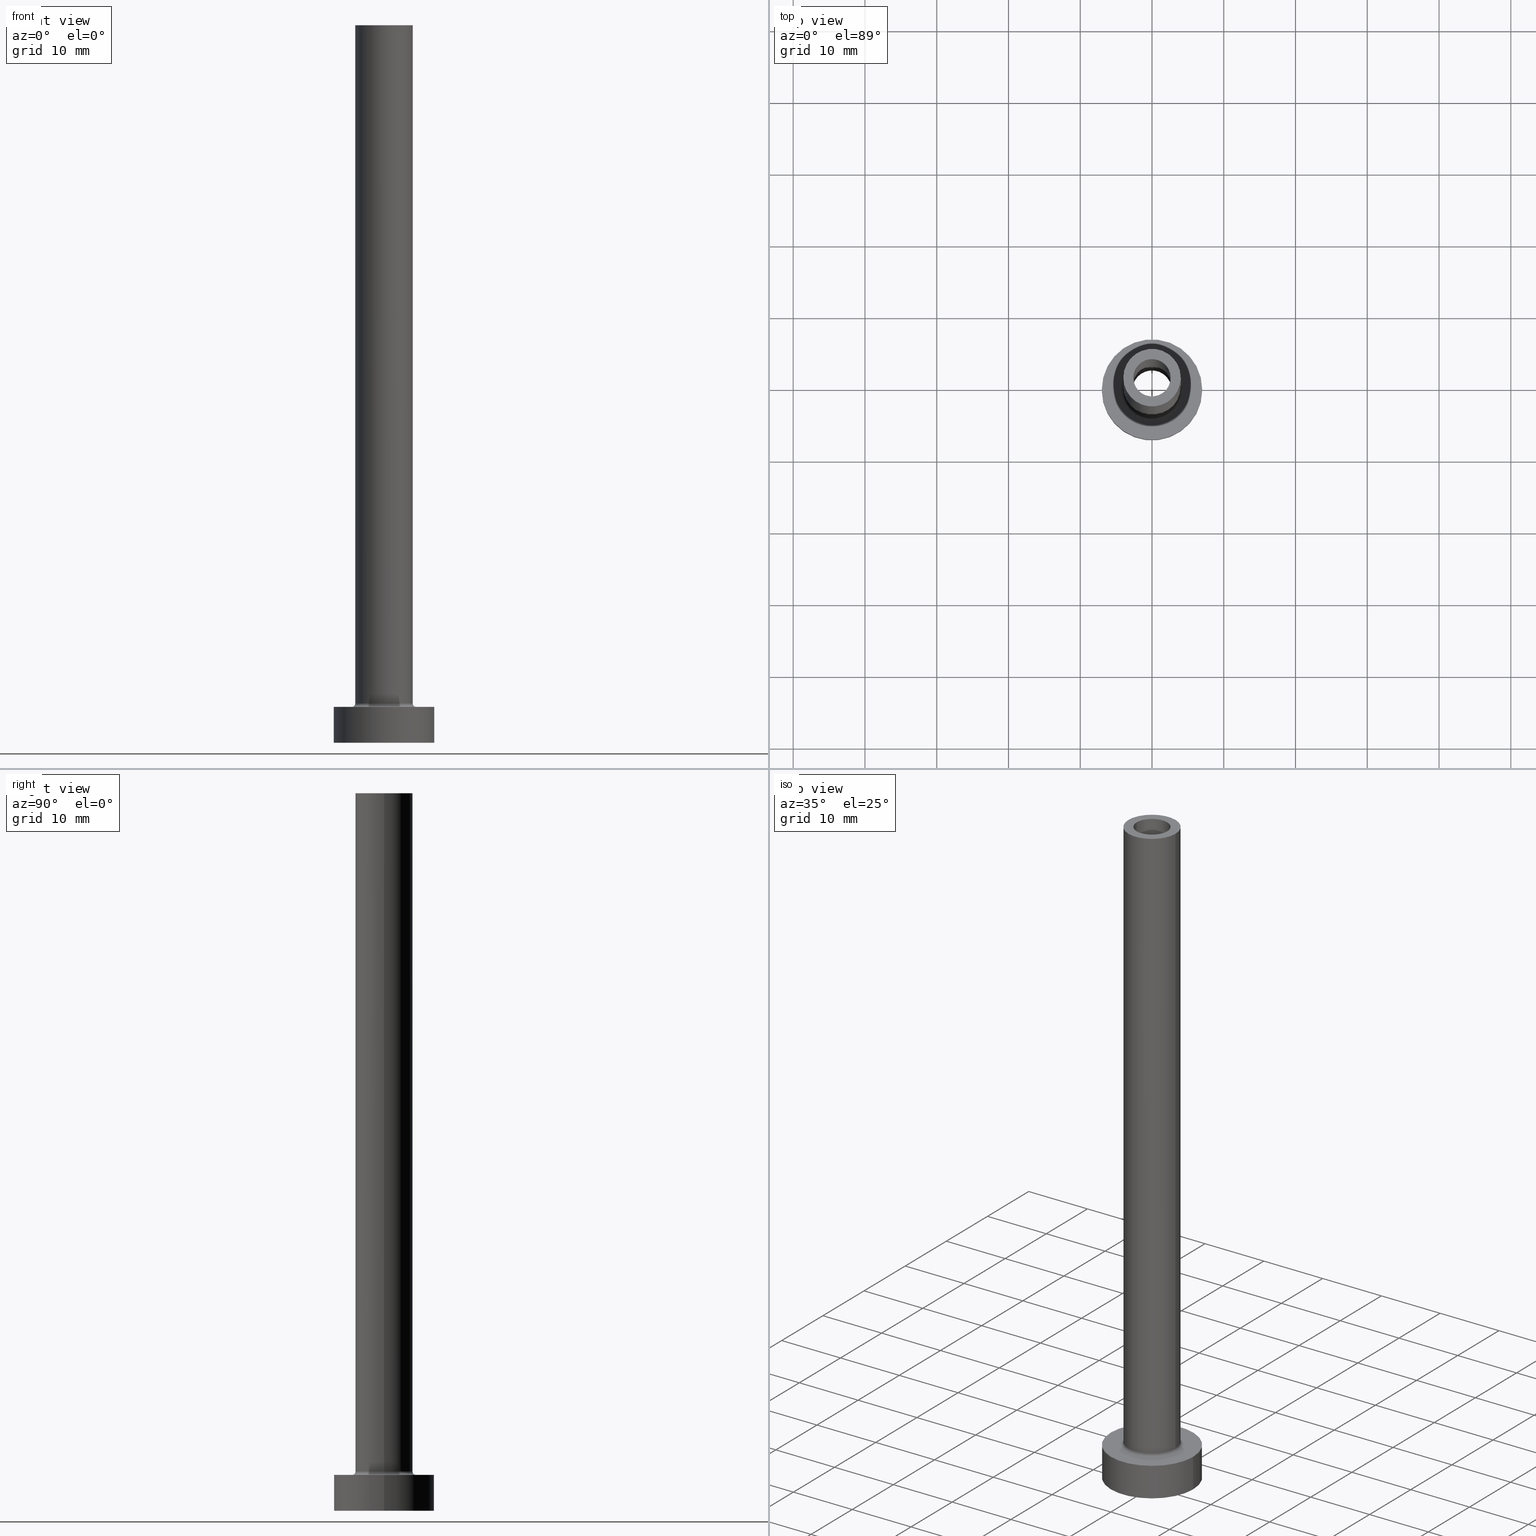
[diagram: canonical four-view strip — front | top / right | iso, engineering-drawing reading convention]
A machine part, canonical four-view strip (front | top / right | iso — engineering-drawing reading convention). The complete STEP part file that produces these views, byte-faithful:
ISO-10303-21;
HEADER;
FILE_DESCRIPTION (( 'STEP AP203' ),
    '1' );
FILE_NAME ('12f9.STEP',
    '2023-02-13T10:12:18',
    ( '' ),
    ( '' ),
    'SwSTEP 2.0',
    'SolidWorks 2019',
    '' );
FILE_SCHEMA (( 'CONFIG_CONTROL_DESIGN' ));
ENDSEC;

DATA;
#1 = EDGE_LOOP ( 'NONE', ( #250, #408, #49, #73 ) ) ;
#2 = EDGE_CURVE ( 'NONE', #51, #146, #188, .T. ) ;
#3 = DIRECTION ( 'NONE',  ( 1.000000000000000000, 0.000000000000000000, 0.000000000000000000 ) ) ;
#4 = EDGE_LOOP ( 'NONE', ( #149, #312 ) ) ;
#5 = CARTESIAN_POINT ( 'NONE',  ( 0.000000000000000000, 0.000000000000000000, 62.77817459305202874 ) ) ;
#6 = ORIENTED_EDGE ( 'NONE', *, *, #400, .T. ) ;
#7 = CC_DESIGN_APPROVAL ( #227, ( #369 ) ) ;
#8 =( LENGTH_UNIT ( ) NAMED_UNIT ( * ) SI_UNIT ( .MILLI., .METRE. ) );
#9 = CARTESIAN_POINT ( 'NONE',  ( 4.500000000000000888, 0.000000000000000000, 5.500000000000005329 ) ) ;
#10 = DIRECTION ( 'NONE',  ( 0.000000000000000000, 0.000000000000000000, 1.000000000000000000 ) ) ;
#11 = VERTEX_POINT ( 'NONE', #153 ) ;
#12 = EDGE_CURVE ( 'NONE', #229, #426, #82, .T. ) ;
#13 = CYLINDRICAL_SURFACE ( 'NONE', #444, 2.600000000000000089 ) ;
#14 = EDGE_LOOP ( 'NONE', ( #297, #267, #355, #300 ) ) ;
#15 = CIRCLE ( 'NONE', #430, 0.5000000000000004441 ) ;
#16 = CIRCLE ( 'NONE', #273, 2.750000000000000000 ) ;
#17 = PERSON_AND_ORGANIZATION ( #208, #366 ) ;
#18 = FACE_OUTER_BOUND ( 'NONE', #287, .T. ) ;
#19 = EDGE_CURVE ( 'NONE', #401, #229, #222, .T. ) ;
#20 = PERSON_AND_ORGANIZATION_ROLE ( 'classification_officer' ) ;
#21 = CARTESIAN_POINT ( 'NONE',  ( 0.000000000000000000, 0.000000000000000000, 5.500000000000005329 ) ) ;
#22 = DIRECTION ( 'NONE',  ( 1.000000000000000000, 0.000000000000000000, 0.000000000000000000 ) ) ;
#23 = CC_DESIGN_APPROVAL ( #385, ( #166 ) ) ;
#24 = CIRCLE ( 'NONE', #217, 4.500000000000000888 ) ;
#25 = CYLINDRICAL_SURFACE ( 'NONE', #225, 4.000000000000000000 ) ;
#26 = DIRECTION ( 'NONE',  ( 0.000000000000000000, 0.000000000000000000, -1.000000000000000000 ) ) ;
#27 = CARTESIAN_POINT ( 'NONE',  ( 0.000000000000000000, 0.000000000000000000, 100.0000000000000000 ) ) ;
#28 = AXIS2_PLACEMENT_3D ( 'NONE', #315, #457, #102 ) ;
#29 = CARTESIAN_POINT ( 'NONE',  ( 0.000000000000000000, 0.000000000000000000, 55.00000000000000711 ) ) ;
#30 = DIRECTION ( 'NONE',  ( 0.000000000000000000, 0.000000000000000000, 1.000000000000000000 ) ) ;
#31 = DIRECTION ( 'NONE',  ( 0.000000000000000000, 0.000000000000000000, 1.000000000000000000 ) ) ;
#32 = ORIENTED_EDGE ( 'NONE', *, *, #177, .F. ) ;
#33 = AXIS2_PLACEMENT_3D ( 'NONE', #27, #165, #377 ) ;
#34 = CARTESIAN_POINT ( 'NONE',  ( 0.000000000000000000, 0.000000000000000000, 55.00000000000000711 ) ) ;
#35 = ORIENTED_EDGE ( 'NONE', *, *, #400, .F. ) ;
#36 = ADVANCED_FACE ( 'NONE', ( #18 ), #432, .T. ) ;
#37 = VECTOR ( 'NONE', #411, 1000.000000000000000 ) ;
#38 = FACE_BOUND ( 'NONE', #316, .T. ) ;
#39 = ORIENTED_EDGE ( 'NONE', *, *, #164, .F. ) ;
#40 = DIRECTION ( 'NONE',  ( 1.000000000000000000, 0.000000000000000000, 0.000000000000000000 ) ) ;
#41 = ORIENTED_EDGE ( 'NONE', *, *, #442, .T. ) ;
#42 = FACE_OUTER_BOUND ( 'NONE', #331, .T. ) ;
#43 = CARTESIAN_POINT ( 'NONE',  ( 0.000000000000000000, 0.000000000000000000, 5.000000000000000000 ) ) ;
#44 = AXIS2_PLACEMENT_3D ( 'NONE', #329, #10, #40 ) ;
#45 = ADVANCED_FACE ( 'NONE', ( #365 ), #402, .T. ) ;
#46 = PERSON_AND_ORGANIZATION ( #208, #366 ) ;
#47 = ORIENTED_EDGE ( 'NONE', *, *, #142, .F. ) ;
#48 = COORDINATED_UNIVERSAL_TIME_OFFSET ( 1, 0, .AHEAD. ) ;
#49 = ORIENTED_EDGE ( 'NONE', *, *, #235, .F. ) ;
#50 = DIRECTION ( 'NONE',  ( -0.000000000000000000, -0.000000000000000000, -1.000000000000000000 ) ) ;
#51 = VERTEX_POINT ( 'NONE', #330 ) ;
#52 = CC_DESIGN_PERSON_AND_ORGANIZATION_ASSIGNMENT ( #134, #65, ( #166 ) ) ;
#53 = VECTOR ( 'NONE', #121, 1000.000000000000000 ) ;
#54 = DIRECTION ( 'NONE',  ( -0.000000000000000000, -0.000000000000000000, -1.000000000000000000 ) ) ;
#55 = DIRECTION ( 'NONE',  ( 1.000000000000000000, 0.000000000000000000, 0.000000000000000000 ) ) ;
#56 = LINE ( 'NONE', #197, #119 ) ;
#57 = VECTOR ( 'NONE', #270, 1000.000000000000000 ) ;
#58 = CC_DESIGN_PERSON_AND_ORGANIZATION_ASSIGNMENT ( #306, #162, ( #166 ) ) ;
#59 = DIRECTION ( 'NONE',  ( 0.000000000000000000, 0.000000000000000000, 1.000000000000000000 ) ) ;
#60 = DIRECTION ( 'NONE',  ( -0.000000000000000000, -0.000000000000000000, -1.000000000000000000 ) ) ;
#61 = LINE ( 'NONE', #276, #159 ) ;
#62 = EDGE_CURVE ( 'NONE', #426, #211, #156, .T. ) ;
#63 = FACE_BOUND ( 'NONE', #4, .T. ) ;
#64 = ORIENTED_EDGE ( 'NONE', *, *, #209, .T. ) ;
#65 = PERSON_AND_ORGANIZATION_ROLE ( 'design_supplier' ) ;
#66 = FACE_OUTER_BOUND ( 'NONE', #231, .T. ) ;
#67 = EDGE_LOOP ( 'NONE', ( #178, #434, #157, #47 ) ) ;
#68 = EDGE_CURVE ( 'NONE', #324, #192, #84, .T. ) ;
#69 = CARTESIAN_POINT ( 'NONE',  ( 0.000000000000000000, 0.000000000000000000, 5.000000000000000000 ) ) ;
#70 = VERTEX_POINT ( 'NONE', #126 ) ;
#71 = CLOSED_SHELL ( 'NONE', ( #415, #334, #342, #92, #45, #36, #253, #219, #169, #379, #99, #447, #310, #154 ) ) ;
#72 = DIRECTION ( 'NONE',  ( 1.000000000000000000, 0.000000000000000000, 0.000000000000000000 ) ) ;
#73 = ORIENTED_EDGE ( 'NONE', *, *, #127, .F. ) ;
#74 = AXIS2_PLACEMENT_3D ( 'NONE', #91, #238, #448 ) ;
#75 = ORIENTED_EDGE ( 'NONE', *, *, #357, .F. ) ;
#76 = DIRECTION ( 'NONE',  ( 1.000000000000000000, 0.000000000000000000, 0.000000000000000000 ) ) ;
#77 = CARTESIAN_POINT ( 'NONE',  ( -4.000000000000000000, 0.000000000000000000, 100.0000000000000000 ) ) ;
#78 = EDGE_CURVE ( 'NONE', #104, #11, #345, .T. ) ;
#79 = COORDINATED_UNIVERSAL_TIME_OFFSET ( 1, 0, .AHEAD. ) ;
#80 = ORIENTED_EDGE ( 'NONE', *, *, #424, .T. ) ;
#81 = SECURITY_CLASSIFICATION ( '', '', #453 ) ;
#82 = CIRCLE ( 'NONE', #373, 4.000000000000000000 ) ;
#83 = APPLICATION_PROTOCOL_DEFINITION ( 'international standard', 'config_control_design', 1994, #419 ) ;
#84 = LINE ( 'NONE', #333, #417 ) ;
#85 = PERSON_AND_ORGANIZATION_ROLE ( 'design_owner' ) ;
#86 = EDGE_CURVE ( 'NONE', #456, #401, #376, .T. ) ;
#87 = ORIENTED_EDGE ( 'NONE', *, *, #410, .F. ) ;
#88 = CARTESIAN_POINT ( 'NONE',  ( 2.750000000000000000, 3.367778697655221012E-16, 62.77817459305202874 ) ) ;
#89 = AXIS2_PLACEMENT_3D ( 'NONE', #326, #230, #221 ) ;
#90 = DIRECTION ( 'NONE',  ( 1.000000000000000000, 0.000000000000000000, 0.000000000000000000 ) ) ;
#91 = CARTESIAN_POINT ( 'NONE',  ( 0.000000000000000000, 0.000000000000000000, 100.0000000000000000 ) ) ;
#92 = ADVANCED_FACE ( 'NONE', ( #340 ), #124, .T. ) ;
#93 = CARTESIAN_POINT ( 'NONE',  ( 0.000000000000000000, 0.000000000000000000, 100.0000000000000000 ) ) ;
#94 = CIRCLE ( 'NONE', #319, 4.000000000000000000 ) ;
#95 = CIRCLE ( 'NONE', #89, 4.000000000000000000 ) ;
#96 = AXIS2_PLACEMENT_3D ( 'NONE', #436, #161, #112 ) ;
#97 = DIRECTION ( 'NONE',  ( 0.000000000000000000, 0.000000000000000000, 1.000000000000000000 ) ) ;
#98 = CARTESIAN_POINT ( 'NONE',  ( 0.000000000000000000, 0.000000000000000000, 0.000000000000000000 ) ) ;
#99 = ADVANCED_FACE ( 'NONE', ( #268 ), #404, .F. ) ;
#100 = FACE_OUTER_BOUND ( 'NONE', #278, .T. ) ;
#101 = ORIENTED_EDGE ( 'NONE', *, *, #318, .T. ) ;
#102 = DIRECTION ( 'NONE',  ( 1.000000000000000000, 0.000000000000000000, 0.000000000000000000 ) ) ;
#103 = DIRECTION ( 'NONE',  ( 1.000000000000000000, 0.000000000000000000, -0.000000000000000000 ) ) ;
#104 = VERTEX_POINT ( 'NONE', #237 ) ;
#105 = CARTESIAN_POINT ( 'NONE',  ( 0.000000000000000000, 0.000000000000000000, 62.77817459305202874 ) ) ;
#106 = EDGE_LOOP ( 'NONE', ( #136, #441, #117, #352 ) ) ;
#107 = CARTESIAN_POINT ( 'NONE',  ( -7.000000000000000000, 0.000000000000000000, 5.000000000000000000 ) ) ;
#108 = CIRCLE ( 'NONE', #44, 7.000000000000000000 ) ;
#109 = ORIENTED_EDGE ( 'NONE', *, *, #285, .F. ) ;
#110 = AXIS2_PLACEMENT_3D ( 'NONE', #361, #143, #137 ) ;
#111 = DIRECTION ( 'NONE',  ( 1.000000000000000000, 0.000000000000000000, 0.000000000000000000 ) ) ;
#112 = DIRECTION ( 'NONE',  ( -1.000000000000000000, 0.000000000000000000, 0.000000000000000000 ) ) ;
#113 = EDGE_CURVE ( 'NONE', #211, #284, #24, .T. ) ;
#114 = PERSON_AND_ORGANIZATION ( #208, #366 ) ;
#115 = DIRECTION ( 'NONE',  ( 0.000000000000000000, -1.000000000000000000, 0.000000000000000000 ) ) ;
#116 = PERSON_AND_ORGANIZATION ( #208, #366 ) ;
#117 = ORIENTED_EDGE ( 'NONE', *, *, #19, .T. ) ;
#118 = AXIS2_PLACEMENT_3D ( 'NONE', #216, #429, #257 ) ;
#119 = VECTOR ( 'NONE', #60, 1000.000000000000000 ) ;
#120 = FACE_OUTER_BOUND ( 'NONE', #1, .T. ) ;
#121 = DIRECTION ( 'NONE',  ( 0.000000000000000000, 0.000000000000000000, -1.000000000000000000 ) ) ;
#122 = APPROVAL_ROLE ( '' ) ;
#123 = ORIENTED_EDGE ( 'NONE', *, *, #148, .T. ) ;
#124 = CYLINDRICAL_SURFACE ( 'NONE', #33, 4.000000000000000000 ) ;
#125 = LOCAL_TIME ( 11, 12, 18.00000000000000000, #48 ) ;
#126 = CARTESIAN_POINT ( 'NONE',  ( -2.600000000000000089, 0.000000000000000000, 55.00000000000000711 ) ) ;
#127 = EDGE_CURVE ( 'NONE', #151, #70, #195, .T. ) ;
#128 = CARTESIAN_POINT ( 'NONE',  ( 7.000000000000000000, 8.572527594031473190E-16, 5.000000000000000000 ) ) ;
#129 = PERSON_AND_ORGANIZATION ( #208, #366 ) ;
#130 = DIRECTION ( 'NONE',  ( 0.000000000000000000, 0.000000000000000000, 1.000000000000000000 ) ) ;
#131 = SHAPE_DEFINITION_REPRESENTATION ( #183, #236 ) ;
#132 = CIRCLE ( 'NONE', #282, 2.600000000000000089 ) ;
#133 = LINE ( 'NONE', #128, #57 ) ;
#134 = PERSON_AND_ORGANIZATION ( #208, #366 ) ;
#135 = DIRECTION ( 'NONE',  ( 0.000000000000000000, 0.000000000000000000, 1.000000000000000000 ) ) ;
#136 = ORIENTED_EDGE ( 'NONE', *, *, #318, .F. ) ;
#137 = DIRECTION ( 'NONE',  ( 1.000000000000000000, 0.000000000000000000, 0.000000000000000000 ) ) ;
#138 = EDGE_LOOP ( 'NONE', ( #255, #101, #64, #207 ) ) ;
#139 = DIRECTION ( 'NONE',  ( 0.000000000000000000, 0.000000000000000000, 1.000000000000000000 ) ) ;
#140 = AXIS2_PLACEMENT_3D ( 'NONE', #249, #254, #210 ) ;
#141 = ORIENTED_EDGE ( 'NONE', *, *, #177, .T. ) ;
#142 = EDGE_CURVE ( 'NONE', #192, #70, #295, .T. ) ;
#143 = DIRECTION ( 'NONE',  ( 0.000000000000000000, 0.000000000000000000, 1.000000000000000000 ) ) ;
#144 = VERTEX_POINT ( 'NONE', #170 ) ;
#145 = FACE_OUTER_BOUND ( 'NONE', #292, .T. ) ;
#146 = VERTEX_POINT ( 'NONE', #301 ) ;
#147 = AXIS2_PLACEMENT_3D ( 'NONE', #5, #190, #186 ) ;
#148 = EDGE_CURVE ( 'NONE', #423, #226, #56, .T. ) ;
#149 = ORIENTED_EDGE ( 'NONE', *, *, #235, .T. ) ;
#150 = CARTESIAN_POINT ( 'NONE',  ( 0.000000000000000000, 0.000000000000000000, 0.000000000000000000 ) ) ;
#151 = VERTEX_POINT ( 'NONE', #239 ) ;
#152 = PERSON_AND_ORGANIZATION_ROLE ( 'creator' ) ;
#153 = CARTESIAN_POINT ( 'NONE',  ( -2.750000000000000000, 0.000000000000000000, 0.000000000000000000 ) ) ;
#154 = ADVANCED_FACE ( 'NONE', ( #445 ), #199, .F. ) ;
#155 = CALENDAR_DATE ( 2023, 13, 2 ) ;
#156 = CIRCLE ( 'NONE', #241, 0.5000000000000004441 ) ;
#157 = ORIENTED_EDGE ( 'NONE', *, *, #127, .T. ) ;
#158 = CC_DESIGN_APPROVAL ( #196, ( #81 ) ) ;
#159 = VECTOR ( 'NONE', #203, 1000.000000000000000 ) ;
#160 =( NAMED_UNIT ( * ) PLANE_ANGLE_UNIT ( ) SI_UNIT ( $, .RADIAN. ) );
#161 = DIRECTION ( 'NONE',  ( -0.000000000000000000, -0.000000000000000000, -1.000000000000000000 ) ) ;
#162 = PERSON_AND_ORGANIZATION_ROLE ( 'creator' ) ;
#163 = CARTESIAN_POINT ( 'NONE',  ( 0.000000000000000000, 0.000000000000000000, 100.0000000000000000 ) ) ;
#164 = EDGE_CURVE ( 'NONE', #324, #151, #337, .T. ) ;
#165 = DIRECTION ( 'NONE',  ( -0.000000000000000000, -0.000000000000000000, -1.000000000000000000 ) ) ;
#166 = PRODUCT_DEFINITION_FORMATION_WITH_SPECIFIED_SOURCE ( 'LIBOVOLN�', '', #322, .NOT_KNOWN. ) ;
#167 = CARTESIAN_POINT ( 'NONE',  ( 0.000000000000000000, 0.000000000000000000, 5.000000000000000000 ) ) ;
#168 = DIRECTION ( 'NONE',  ( -0.000000000000000000, -0.000000000000000000, -1.000000000000000000 ) ) ;
#169 = ADVANCED_FACE ( 'NONE', ( #343 ), #25, .T. ) ;
#170 = CARTESIAN_POINT ( 'NONE',  ( 7.000000000000000000, 8.572527594031473190E-16, 5.000000000000000000 ) ) ;
#171 = CIRCLE ( 'NONE', #383, 4.500000000000000888 ) ;
#172 = VECTOR ( 'NONE', #446, 1000.000000000000000 ) ;
#173 = DIRECTION ( 'NONE',  ( 1.000000000000000000, 0.000000000000000000, 0.000000000000000000 ) ) ;
#174 = ORIENTED_EDGE ( 'NONE', *, *, #113, .T. ) ;
#175 = CALENDAR_DATE ( 2023, 13, 2 ) ;
#176 = PLANE ( 'NONE',  #360 ) ;
#177 = EDGE_CURVE ( 'NONE', #284, #211, #171, .T. ) ;
#178 = ORIENTED_EDGE ( 'NONE', *, *, #68, .F. ) ;
#179 = CC_DESIGN_SECURITY_CLASSIFICATION ( #81, ( #166 ) ) ;
#180 = DIRECTION ( 'NONE',  ( 1.000000000000000000, 0.000000000000000000, -0.000000000000000000 ) ) ;
#181 = AXIS2_PLACEMENT_3D ( 'NONE', #69, #421, #245 ) ;
#182 = ORIENTED_EDGE ( 'NONE', *, *, #248, .F. ) ;
#183 = PRODUCT_DEFINITION_SHAPE ( 'NONE', 'NONE',  #369 ) ;
#184 = DIRECTION ( 'NONE',  ( 0.000000000000000000, 0.000000000000000000, -1.000000000000000000 ) ) ;
#185 = ORIENTED_EDGE ( 'NONE', *, *, #2, .T. ) ;
#186 = DIRECTION ( 'NONE',  ( -1.000000000000000000, 0.000000000000000000, 0.000000000000000000 ) ) ;
#187 = DIRECTION ( 'NONE',  ( -1.000000000000000000, 0.000000000000000000, 0.000000000000000000 ) ) ;
#188 = LINE ( 'NONE', #88, #53 ) ;
#189 = DIRECTION ( 'NONE',  ( 0.000000000000000000, 0.000000000000000000, -1.000000000000000000 ) ) ;
#190 = DIRECTION ( 'NONE',  ( 0.000000000000000000, 0.000000000000000000, -1.000000000000000000 ) ) ;
#191 = AXIS2_PLACEMENT_3D ( 'NONE', #354, #31, #317 ) ;
#192 = VERTEX_POINT ( 'NONE', #202 ) ;
#193 = TOROIDAL_SURFACE ( 'NONE', #309, 4.500000000000000888, 0.5000000000000000000 ) ;
#194 = APPROVAL_STATUS ( 'not_yet_approved' ) ;
#195 = LINE ( 'NONE', #307, #37 ) ;
#196 = APPROVAL ( #353, 'NEUR�EN�' ) ;
#197 = CARTESIAN_POINT ( 'NONE',  ( -7.000000000000000000, 0.000000000000000000, 5.000000000000000000 ) ) ;
#198 = CIRCLE ( 'NONE', #118, 2.600000000000000089 ) ;
#199 = CYLINDRICAL_SURFACE ( 'NONE', #264, 2.600000000000000089 ) ;
#200 = EDGE_CURVE ( 'NONE', #144, #362, #133, .T. ) ;
#201 = DATE_AND_TIME ( #205, #281 ) ;
#202 = CARTESIAN_POINT ( 'NONE',  ( 2.600000000000000089, 3.184081677783117698E-16, 55.00000000000000711 ) ) ;
#203 = DIRECTION ( 'NONE',  ( -0.000000000000000000, -0.000000000000000000, -1.000000000000000000 ) ) ;
#204 = APPROVAL_PERSON_ORGANIZATION ( #114, #227, #299 ) ;
#205 = CALENDAR_DATE ( 2023, 13, 2 ) ;
#206 = FACE_OUTER_BOUND ( 'NONE', #358, .T. ) ;
#207 = ORIENTED_EDGE ( 'NONE', *, *, #19, .F. ) ;
#208 = PERSON ( 'NEUR�EN�', 'NEUR�EN�', 'NEUR�EN�', ('NEUR�EN�'), ('NEUR�EN�'), ('NEUR�EN�') ) ;
#209 = EDGE_CURVE ( 'NONE', #426, #229, #94, .T. ) ;
#210 = DIRECTION ( 'NONE',  ( 1.000000000000000000, 0.000000000000000000, -0.000000000000000000 ) ) ;
#211 = VERTEX_POINT ( 'NONE', #242 ) ;
#212 = CARTESIAN_POINT ( 'NONE',  ( -4.000000000000000000, 0.000000000000000000, 5.500000000000005329 ) ) ;
#213 = ORIENTED_EDGE ( 'NONE', *, *, #113, .F. ) ;
#214 = AXIS2_PLACEMENT_3D ( 'NONE', #98, #443, #356 ) ;
#215 = APPLICATION_CONTEXT ( 'configuration controlled 3d designs of mechanical parts and assemblies' ) ;
#216 = CARTESIAN_POINT ( 'NONE',  ( 0.000000000000000000, 0.000000000000000000, 100.0000000000000000 ) ) ;
#217 = AXIS2_PLACEMENT_3D ( 'NONE', #409, #168, #55 ) ;
#218 = ORIENTED_EDGE ( 'NONE', *, *, #209, .F. ) ;
#219 = ADVANCED_FACE ( 'NONE', ( #384, #346 ), #418, .F. ) ;
#220 = ORIENTED_EDGE ( 'NONE', *, *, #262, .T. ) ;
#221 = DIRECTION ( 'NONE',  ( 1.000000000000000000, 0.000000000000000000, 0.000000000000000000 ) ) ;
#222 = LINE ( 'NONE', #77, #431 ) ;
#223 = CIRCLE ( 'NONE', #349, 2.750000000000000000 ) ;
#224 = DATE_AND_TIME ( #435, #247 ) ;
#225 = AXIS2_PLACEMENT_3D ( 'NONE', #93, #54, #382 ) ;
#226 = VERTEX_POINT ( 'NONE', #243 ) ;
#227 = APPROVAL ( #260, 'NEUR�EN�' ) ;
#228 = APPLICATION_PROTOCOL_DEFINITION ( 'international standard', 'config_control_design', 1994, #215 ) ;
#229 = VERTEX_POINT ( 'NONE', #212 ) ;
#230 = DIRECTION ( 'NONE',  ( 0.000000000000000000, 0.000000000000000000, 1.000000000000000000 ) ) ;
#231 = EDGE_LOOP ( 'NONE', ( #80, #259 ) ) ;
#232 = CIRCLE ( 'NONE', #28, 2.750000000000000000 ) ;
#233 = ORIENTED_EDGE ( 'NONE', *, *, #285, .T. ) ;
#234 = APPROVAL_PERSON_ORGANIZATION ( #129, #196, #122 ) ;
#235 = EDGE_CURVE ( 'NONE', #70, #192, #132, .T. ) ;
#236 = ADVANCED_BREP_SHAPE_REPRESENTATION ( '12f9', ( #325, #302 ), #388 ) ;
#237 = CARTESIAN_POINT ( 'NONE',  ( -2.750000000000000000, 0.000000000000000000, 55.00000000000000711 ) ) ;
#238 = DIRECTION ( 'NONE',  ( 0.000000000000000000, 0.000000000000000000, 1.000000000000000000 ) ) ;
#239 = CARTESIAN_POINT ( 'NONE',  ( -2.600000000000000089, 0.000000000000000000, 100.0000000000000000 ) ) ;
#240 = APPROVAL_DATE_TIME ( #350, #385 ) ;
#241 = AXIS2_PLACEMENT_3D ( 'NONE', #9, #115, #189 ) ;
#242 = CARTESIAN_POINT ( 'NONE',  ( 4.500000000000000888, 0.000000000000000000, 5.000000000000002665 ) ) ;
#243 = CARTESIAN_POINT ( 'NONE',  ( -7.000000000000000000, 0.000000000000000000, 0.000000000000000000 ) ) ;
#244 = CALENDAR_DATE ( 2023, 13, 2 ) ;
#245 = DIRECTION ( 'NONE',  ( 1.000000000000000000, 0.000000000000000000, 0.000000000000000000 ) ) ;
#246 = ORIENTED_EDGE ( 'NONE', *, *, #78, .T. ) ;
#247 = LOCAL_TIME ( 11, 12, 18.00000000000000000, #79 ) ;
#248 = EDGE_CURVE ( 'NONE', #423, #144, #344, .T. ) ;
#249 = CARTESIAN_POINT ( 'NONE',  ( 0.000000000000000000, 0.000000000000000000, 100.0000000000000000 ) ) ;
#250 = ORIENTED_EDGE ( 'NONE', *, *, #410, .T. ) ;
#251 = CYLINDRICAL_SURFACE ( 'NONE', #452, 2.750000000000000000 ) ;
#252 = EDGE_LOOP ( 'NONE', ( #174, #141 ) ) ;
#253 = ADVANCED_FACE ( 'NONE', ( #390, #348 ), #323, .T. ) ;
#254 = DIRECTION ( 'NONE',  ( 0.000000000000000000, 0.000000000000000000, 1.000000000000000000 ) ) ;
#255 = ORIENTED_EDGE ( 'NONE', *, *, #86, .F. ) ;
#256 = AXIS2_PLACEMENT_3D ( 'NONE', #288, #139, #72 ) ;
#257 = DIRECTION ( 'NONE',  ( 1.000000000000000000, 0.000000000000000000, 0.000000000000000000 ) ) ;
#258 = ORIENTED_EDGE ( 'NONE', *, *, #442, .F. ) ;
#259 = ORIENTED_EDGE ( 'NONE', *, *, #86, .T. ) ;
#260 = APPROVAL_STATUS ( 'not_yet_approved' ) ;
#261 = ORIENTED_EDGE ( 'NONE', *, *, #200, .F. ) ;
#262 = EDGE_CURVE ( 'NONE', #229, #284, #15, .T. ) ;
#263 = CYLINDRICAL_SURFACE ( 'NONE', #147, 2.750000000000000000 ) ;
#264 = AXIS2_PLACEMENT_3D ( 'NONE', #378, #341, #451 ) ;
#265 = ORIENTED_EDGE ( 'NONE', *, *, #12, .F. ) ;
#266 = ORIENTED_EDGE ( 'NONE', *, *, #328, .F. ) ;
#267 = ORIENTED_EDGE ( 'NONE', *, *, #200, .T. ) ;
#268 = FACE_OUTER_BOUND ( 'NONE', #428, .T. ) ;
#269 = DIRECTION ( 'NONE',  ( 0.000000000000000000, 0.000000000000000000, 1.000000000000000000 ) ) ;
#270 = DIRECTION ( 'NONE',  ( -0.000000000000000000, -0.000000000000000000, -1.000000000000000000 ) ) ;
#271 = DATE_TIME_ROLE ( 'classification_date' ) ;
#272 = CARTESIAN_POINT ( 'NONE',  ( 0.000000000000000000, 0.000000000000000000, 55.00000000000000711 ) ) ;
#273 = AXIS2_PLACEMENT_3D ( 'NONE', #29, #279, #420 ) ;
#274 = DIRECTION ( 'NONE',  ( 1.000000000000000000, 0.000000000000000000, 0.000000000000000000 ) ) ;
#275 = COORDINATED_UNIVERSAL_TIME_OFFSET ( 1, 0, .AHEAD. ) ;
#276 = CARTESIAN_POINT ( 'NONE',  ( 4.000000000000000000, 4.898587196589412829E-16, 100.0000000000000000 ) ) ;
#277 = CC_DESIGN_DATE_AND_TIME_ASSIGNMENT ( #336, #439, ( #369 ) ) ;
#278 = EDGE_LOOP ( 'NONE', ( #233, #185, #41, #399 ) ) ;
#279 = DIRECTION ( 'NONE',  ( 0.000000000000000000, 0.000000000000000000, 1.000000000000000000 ) ) ;
#280 = ORIENTED_EDGE ( 'NONE', *, *, #458, .T. ) ;
#281 = LOCAL_TIME ( 11, 12, 18.00000000000000000, #449 ) ;
#282 = AXIS2_PLACEMENT_3D ( 'NONE', #386, #283, #173 ) ;
#283 = DIRECTION ( 'NONE',  ( 0.000000000000000000, 0.000000000000000000, 1.000000000000000000 ) ) ;
#284 = VERTEX_POINT ( 'NONE', #393 ) ;
#285 = EDGE_CURVE ( 'NONE', #104, #51, #296, .T. ) ;
#286 = DIRECTION ( 'NONE',  ( -1.000000000000000000, 0.000000000000000000, 0.000000000000000000 ) ) ;
#287 = EDGE_LOOP ( 'NONE', ( #261, #182, #123, #6 ) ) ;
#288 = CARTESIAN_POINT ( 'NONE',  ( 0.000000000000000000, 0.000000000000000000, 0.000000000000000000 ) ) ;
#289 =( NAMED_UNIT ( * ) SI_UNIT ( $, .STERADIAN. ) SOLID_ANGLE_UNIT ( ) );
#290 = DIRECTION ( 'NONE',  ( 0.000000000000000000, 0.000000000000000000, 1.000000000000000000 ) ) ;
#291 = MECHANICAL_CONTEXT ( 'NONE', #419, 'mechanical' ) ;
#292 = EDGE_LOOP ( 'NONE', ( #265, #220, #213, #368 ) ) ;
#293 = CC_DESIGN_DATE_AND_TIME_ASSIGNMENT ( #201, #271, ( #81 ) ) ;
#294 = DIRECTION ( 'NONE',  ( -0.000000000000000000, -0.000000000000000000, -1.000000000000000000 ) ) ;
#295 = CIRCLE ( 'NONE', #335, 2.600000000000000089 ) ;
#296 = CIRCLE ( 'NONE', #110, 2.750000000000000000 ) ;
#297 = ORIENTED_EDGE ( 'NONE', *, *, #458, .F. ) ;
#298 = PRODUCT_RELATED_PRODUCT_CATEGORY ( 'detail', '', ( #322 ) ) ;
#299 = APPROVAL_ROLE ( '' ) ;
#300 = ORIENTED_EDGE ( 'NONE', *, *, #148, .F. ) ;
#301 = CARTESIAN_POINT ( 'NONE',  ( 2.750000000000000000, 3.367778697655221012E-16, 0.000000000000000000 ) ) ;
#302 = AXIS2_PLACEMENT_3D ( 'NONE', #150, #433, #111 ) ;
#303 = DIRECTION ( 'NONE',  ( -0.000000000000000000, -0.000000000000000000, -1.000000000000000000 ) ) ;
#304 = CC_DESIGN_PERSON_AND_ORGANIZATION_ASSIGNMENT ( #46, #152, ( #369 ) ) ;
#305 = CARTESIAN_POINT ( 'NONE',  ( -2.750000000000000000, 0.000000000000000000, 62.77817459305202874 ) ) ;
#306 = PERSON_AND_ORGANIZATION ( #208, #366 ) ;
#307 = CARTESIAN_POINT ( 'NONE',  ( -2.600000000000000089, 0.000000000000000000, 100.0000000000000000 ) ) ;
#308 = AXIS2_PLACEMENT_3D ( 'NONE', #163, #269, #22 ) ;
#309 = AXIS2_PLACEMENT_3D ( 'NONE', #311, #427, #3 ) ;
#310 = ADVANCED_FACE ( 'NONE', ( #63, #206 ), #176, .F. ) ;
#311 = CARTESIAN_POINT ( 'NONE',  ( 0.000000000000000000, 0.000000000000000000, 5.500000000000005329 ) ) ;
#312 = ORIENTED_EDGE ( 'NONE', *, *, #142, .T. ) ;
#313 = PERSON_AND_ORGANIZATION ( #208, #366 ) ;
#314 = DESIGN_CONTEXT ( 'detailed design', #215, 'design' ) ;
#315 = CARTESIAN_POINT ( 'NONE',  ( 0.000000000000000000, 0.000000000000000000, 0.000000000000000000 ) ) ;
#316 = EDGE_LOOP ( 'NONE', ( #87, #39 ) ) ;
#317 = DIRECTION ( 'NONE',  ( 1.000000000000000000, 0.000000000000000000, 0.000000000000000000 ) ) ;
#318 = EDGE_CURVE ( 'NONE', #456, #426, #61, .T. ) ;
#319 = AXIS2_PLACEMENT_3D ( 'NONE', #412, #97, #274 ) ;
#320 = PLANE ( 'NONE',  #140 ) ;
#321 = ORIENTED_EDGE ( 'NONE', *, *, #262, .F. ) ;
#322 = PRODUCT ( '12f9', '12f9', '', ( #291 ) ) ;
#323 = PLANE ( 'NONE',  #438 ) ;
#324 = VERTEX_POINT ( 'NONE', #395 ) ;
#325 = MANIFOLD_SOLID_BREP ( 'Odebrat vysunut�m4', #71 ) ;
#326 = CARTESIAN_POINT ( 'NONE',  ( 0.000000000000000000, 0.000000000000000000, 100.0000000000000000 ) ) ;
#327 = ORIENTED_EDGE ( 'NONE', *, *, #2, .F. ) ;
#328 = EDGE_CURVE ( 'NONE', #51, #104, #16, .T. ) ;
#329 = CARTESIAN_POINT ( 'NONE',  ( 0.000000000000000000, 0.000000000000000000, 5.000000000000000000 ) ) ;
#330 = CARTESIAN_POINT ( 'NONE',  ( 2.750000000000000000, 3.367778697655221012E-16, 55.00000000000000711 ) ) ;
#331 = EDGE_LOOP ( 'NONE', ( #327, #391, #246, #407 ) ) ;
#332 = DIRECTION ( 'NONE',  ( -1.000000000000000000, 0.000000000000000000, 0.000000000000000000 ) ) ;
#333 = CARTESIAN_POINT ( 'NONE',  ( 2.600000000000000089, 3.184081677783117698E-16, 100.0000000000000000 ) ) ;
#334 = ADVANCED_FACE ( 'NONE', ( #100 ), #251, .F. ) ;
#335 = AXIS2_PLACEMENT_3D ( 'NONE', #272, #59, #90 ) ;
#336 = DATE_AND_TIME ( #155, #125 ) ;
#337 = CIRCLE ( 'NONE', #74, 2.600000000000000089 ) ;
#338 = DIRECTION ( 'NONE',  ( 1.000000000000000000, 0.000000000000000000, 0.000000000000000000 ) ) ;
#339 = APPROVAL_DATE_TIME ( #413, #196 ) ;
#340 = FACE_OUTER_BOUND ( 'NONE', #138, .T. ) ;
#341 = DIRECTION ( 'NONE',  ( 0.000000000000000000, 0.000000000000000000, -1.000000000000000000 ) ) ;
#342 = ADVANCED_FACE ( 'NONE', ( #145 ), #193, .F. ) ;
#343 = FACE_OUTER_BOUND ( 'NONE', #106, .T. ) ;
#344 = CIRCLE ( 'NONE', #181, 7.000000000000000000 ) ;
#345 = LINE ( 'NONE', #305, #172 ) ;
#346 = FACE_OUTER_BOUND ( 'NONE', #460, .T. ) ;
#347 = COORDINATED_UNIVERSAL_TIME_OFFSET ( 1, 0, .AHEAD. ) ;
#348 = FACE_OUTER_BOUND ( 'NONE', #389, .T. ) ;
#349 = AXIS2_PLACEMENT_3D ( 'NONE', #364, #50, #76 ) ;
#350 = DATE_AND_TIME ( #175, #374 ) ;
#351 = DIRECTION ( 'NONE',  ( -1.000000000000000000, 1.224646799147351482E-16, 0.000000000000000000 ) ) ;
#352 = ORIENTED_EDGE ( 'NONE', *, *, #12, .T. ) ;
#353 = APPROVAL_STATUS ( 'not_yet_approved' ) ;
#354 = CARTESIAN_POINT ( 'NONE',  ( 0.000000000000000000, 0.000000000000000000, 0.000000000000000000 ) ) ;
#355 = ORIENTED_EDGE ( 'NONE', *, *, #403, .T. ) ;
#356 = DIRECTION ( 'NONE',  ( 1.000000000000000000, 0.000000000000000000, -0.000000000000000000 ) ) ;
#357 = EDGE_CURVE ( 'NONE', #11, #146, #232, .T. ) ;
#358 = EDGE_LOOP ( 'NONE', ( #109, #266 ) ) ;
#359 = AXIS2_PLACEMENT_3D ( 'NONE', #43, #406, #187 ) ;
#360 = AXIS2_PLACEMENT_3D ( 'NONE', #34, #30, #180 ) ;
#361 = CARTESIAN_POINT ( 'NONE',  ( 0.000000000000000000, 0.000000000000000000, 55.00000000000000711 ) ) ;
#362 = VERTEX_POINT ( 'NONE', #425 ) ;
#363 = CARTESIAN_POINT ( 'NONE',  ( 0.000000000000000000, 0.000000000000000000, 100.0000000000000000 ) ) ;
#364 = CARTESIAN_POINT ( 'NONE',  ( 0.000000000000000000, 0.000000000000000000, 0.000000000000000000 ) ) ;
#365 = FACE_OUTER_BOUND ( 'NONE', #14, .T. ) ;
#366 = ORGANIZATION ( 'NEUR�EN�', 'NEUR�EN�', '' ) ;
#367 = APPROVAL_DATE_TIME ( #224, #227 ) ;
#368 = ORIENTED_EDGE ( 'NONE', *, *, #62, .F. ) ;
#369 = PRODUCT_DEFINITION ( 'NEZN�M�', '', #166, #314 ) ;
#370 = ORIENTED_EDGE ( 'NONE', *, *, #403, .F. ) ;
#371 = CARTESIAN_POINT ( 'NONE',  ( 4.000000000000000000, 4.898587196589412829E-16, 5.500000000000005329 ) ) ;
#372 = CARTESIAN_POINT ( 'NONE',  ( 0.000000000000000000, 0.000000000000000000, 5.500000000000005329 ) ) ;
#373 = AXIS2_PLACEMENT_3D ( 'NONE', #372, #290, #338 ) ;
#374 = LOCAL_TIME ( 11, 12, 18.00000000000000000, #347 ) ;
#375 = APPROVAL_ROLE ( '' ) ;
#376 = CIRCLE ( 'NONE', #308, 4.000000000000000000 ) ;
#377 = DIRECTION ( 'NONE',  ( -1.000000000000000000, 0.000000000000000000, 0.000000000000000000 ) ) ;
#378 = CARTESIAN_POINT ( 'NONE',  ( 0.000000000000000000, 0.000000000000000000, 100.0000000000000000 ) ) ;
#379 = ADVANCED_FACE ( 'NONE', ( #38, #66 ), #320, .T. ) ;
#380 = DIRECTION ( 'NONE',  ( 1.000000000000000000, 0.000000000000000000, 0.000000000000000000 ) ) ;
#381 = LOCAL_TIME ( 11, 12, 18.00000000000000000, #275 ) ;
#382 = DIRECTION ( 'NONE',  ( -1.000000000000000000, 0.000000000000000000, 0.000000000000000000 ) ) ;
#383 = AXIS2_PLACEMENT_3D ( 'NONE', #167, #303, #416 ) ;
#384 = FACE_BOUND ( 'NONE', #396, .T. ) ;
#385 = APPROVAL ( #194, 'NEUR�EN�' ) ;
#386 = CARTESIAN_POINT ( 'NONE',  ( 0.000000000000000000, 0.000000000000000000, 55.00000000000000711 ) ) ;
#387 = CARTESIAN_POINT ( 'NONE',  ( 0.000000000000000000, 0.000000000000000000, 5.000000000000000000 ) ) ;
#388 =( GEOMETRIC_REPRESENTATION_CONTEXT ( 3 ) GLOBAL_UNCERTAINTY_ASSIGNED_CONTEXT ( ( #454 ) ) GLOBAL_UNIT_ASSIGNED_CONTEXT ( ( #8, #160, #289 ) ) REPRESENTATION_CONTEXT ( 'NONE', 'WORKASPACE' ) );
#389 = EDGE_LOOP ( 'NONE', ( #440, #280 ) ) ;
#390 = FACE_BOUND ( 'NONE', #252, .T. ) ;
#391 = ORIENTED_EDGE ( 'NONE', *, *, #328, .T. ) ;
#392 = CC_DESIGN_PERSON_AND_ORGANIZATION_ASSIGNMENT ( #116, #85, ( #322 ) ) ;
#393 = CARTESIAN_POINT ( 'NONE',  ( -4.500000000000000888, 5.510910596163088569E-16, 5.000000000000002665 ) ) ;
#394 = ORIENTED_EDGE ( 'NONE', *, *, #62, .T. ) ;
#395 = CARTESIAN_POINT ( 'NONE',  ( 2.600000000000000089, 3.184081677783117698E-16, 100.0000000000000000 ) ) ;
#396 = EDGE_LOOP ( 'NONE', ( #75, #258 ) ) ;
#397 = CIRCLE ( 'NONE', #191, 7.000000000000000000 ) ;
#398 = CARTESIAN_POINT ( 'NONE',  ( 4.000000000000000000, 4.898587196589412829E-16, 100.0000000000000000 ) ) ;
#399 = ORIENTED_EDGE ( 'NONE', *, *, #78, .F. ) ;
#400 = EDGE_CURVE ( 'NONE', #226, #362, #397, .T. ) ;
#401 = VERTEX_POINT ( 'NONE', #459 ) ;
#402 = CYLINDRICAL_SURFACE ( 'NONE', #359, 7.000000000000000000 ) ;
#403 = EDGE_CURVE ( 'NONE', #362, #226, #450, .T. ) ;
#404 = TOROIDAL_SURFACE ( 'NONE', #414, 4.500000000000000888, 0.5000000000000000000 ) ;
#405 = DIRECTION ( 'NONE',  ( 0.000000000000000000, 0.000000000000000000, -1.000000000000000000 ) ) ;
#406 = DIRECTION ( 'NONE',  ( -0.000000000000000000, -0.000000000000000000, -1.000000000000000000 ) ) ;
#407 = ORIENTED_EDGE ( 'NONE', *, *, #357, .T. ) ;
#408 = ORIENTED_EDGE ( 'NONE', *, *, #68, .T. ) ;
#409 = CARTESIAN_POINT ( 'NONE',  ( 0.000000000000000000, 0.000000000000000000, 5.000000000000000000 ) ) ;
#410 = EDGE_CURVE ( 'NONE', #151, #324, #198, .T. ) ;
#411 = DIRECTION ( 'NONE',  ( 0.000000000000000000, 0.000000000000000000, -1.000000000000000000 ) ) ;
#412 = CARTESIAN_POINT ( 'NONE',  ( 0.000000000000000000, 0.000000000000000000, 5.500000000000005329 ) ) ;
#413 = DATE_AND_TIME ( #244, #381 ) ;
#414 = AXIS2_PLACEMENT_3D ( 'NONE', #21, #130, #380 ) ;
#415 = ADVANCED_FACE ( 'NONE', ( #120 ), #13, .F. ) ;
#416 = DIRECTION ( 'NONE',  ( 1.000000000000000000, 0.000000000000000000, 0.000000000000000000 ) ) ;
#417 = VECTOR ( 'NONE', #26, 1000.000000000000000 ) ;
#418 = PLANE ( 'NONE',  #214 ) ;
#419 = APPLICATION_CONTEXT ( 'configuration controlled 3d designs of mechanical parts and assemblies' ) ;
#420 = DIRECTION ( 'NONE',  ( 1.000000000000000000, 0.000000000000000000, 0.000000000000000000 ) ) ;
#421 = DIRECTION ( 'NONE',  ( 0.000000000000000000, 0.000000000000000000, 1.000000000000000000 ) ) ;
#422 = APPROVAL_PERSON_ORGANIZATION ( #17, #385, #375 ) ;
#423 = VERTEX_POINT ( 'NONE', #107 ) ;
#424 = EDGE_CURVE ( 'NONE', #401, #456, #95, .T. ) ;
#425 = CARTESIAN_POINT ( 'NONE',  ( 7.000000000000000000, 8.572527594031473190E-16, 0.000000000000000000 ) ) ;
#426 = VERTEX_POINT ( 'NONE', #371 ) ;
#427 = DIRECTION ( 'NONE',  ( 0.000000000000000000, 0.000000000000000000, 1.000000000000000000 ) ) ;
#428 = EDGE_LOOP ( 'NONE', ( #321, #218, #394, #32 ) ) ;
#429 = DIRECTION ( 'NONE',  ( 0.000000000000000000, 0.000000000000000000, 1.000000000000000000 ) ) ;
#430 = AXIS2_PLACEMENT_3D ( 'NONE', #461, #455, #351 ) ;
#431 = VECTOR ( 'NONE', #294, 1000.000000000000000 ) ;
#432 = CYLINDRICAL_SURFACE ( 'NONE', #96, 7.000000000000000000 ) ;
#433 = DIRECTION ( 'NONE',  ( 0.000000000000000000, 0.000000000000000000, 1.000000000000000000 ) ) ;
#434 = ORIENTED_EDGE ( 'NONE', *, *, #164, .T. ) ;
#435 = CALENDAR_DATE ( 2023, 13, 2 ) ;
#436 = CARTESIAN_POINT ( 'NONE',  ( 0.000000000000000000, 0.000000000000000000, 5.000000000000000000 ) ) ;
#437 = CC_DESIGN_PERSON_AND_ORGANIZATION_ASSIGNMENT ( #313, #20, ( #81 ) ) ;
#438 = AXIS2_PLACEMENT_3D ( 'NONE', #387, #135, #103 ) ;
#439 = DATE_TIME_ROLE ( 'creation_date' ) ;
#440 = ORIENTED_EDGE ( 'NONE', *, *, #248, .T. ) ;
#441 = ORIENTED_EDGE ( 'NONE', *, *, #424, .F. ) ;
#442 = EDGE_CURVE ( 'NONE', #146, #11, #223, .T. ) ;
#443 = DIRECTION ( 'NONE',  ( 0.000000000000000000, 0.000000000000000000, 1.000000000000000000 ) ) ;
#444 = AXIS2_PLACEMENT_3D ( 'NONE', #363, #405, #332 ) ;
#445 = FACE_OUTER_BOUND ( 'NONE', #67, .T. ) ;
#446 = DIRECTION ( 'NONE',  ( 0.000000000000000000, 0.000000000000000000, -1.000000000000000000 ) ) ;
#447 = ADVANCED_FACE ( 'NONE', ( #42 ), #263, .F. ) ;
#448 = DIRECTION ( 'NONE',  ( 1.000000000000000000, 0.000000000000000000, 0.000000000000000000 ) ) ;
#449 = COORDINATED_UNIVERSAL_TIME_OFFSET ( 1, 0, .AHEAD. ) ;
#450 = CIRCLE ( 'NONE', #256, 7.000000000000000000 ) ;
#451 = DIRECTION ( 'NONE',  ( -1.000000000000000000, 0.000000000000000000, 0.000000000000000000 ) ) ;
#452 = AXIS2_PLACEMENT_3D ( 'NONE', #105, #184, #286 ) ;
#453 = SECURITY_CLASSIFICATION_LEVEL ( 'unclassified' ) ;
#454 = UNCERTAINTY_MEASURE_WITH_UNIT (LENGTH_MEASURE( 1.000000000000000082E-05 ), #8, 'distance_accuracy_value', 'NONE');
#455 = DIRECTION ( 'NONE',  ( 1.224646799147353207E-16, 1.000000000000000000, -0.000000000000000000 ) ) ;
#456 = VERTEX_POINT ( 'NONE', #398 ) ;
#457 = DIRECTION ( 'NONE',  ( -0.000000000000000000, -0.000000000000000000, -1.000000000000000000 ) ) ;
#458 = EDGE_CURVE ( 'NONE', #144, #423, #108, .T. ) ;
#459 = CARTESIAN_POINT ( 'NONE',  ( -4.000000000000000000, 0.000000000000000000, 100.0000000000000000 ) ) ;
#460 = EDGE_LOOP ( 'NONE', ( #35, #370 ) ) ;
#461 = CARTESIAN_POINT ( 'NONE',  ( -4.500000000000000888, 5.510910596163089556E-16, 5.500000000000005329 ) ) ;
ENDSEC;
END-ISO-10303-21;
